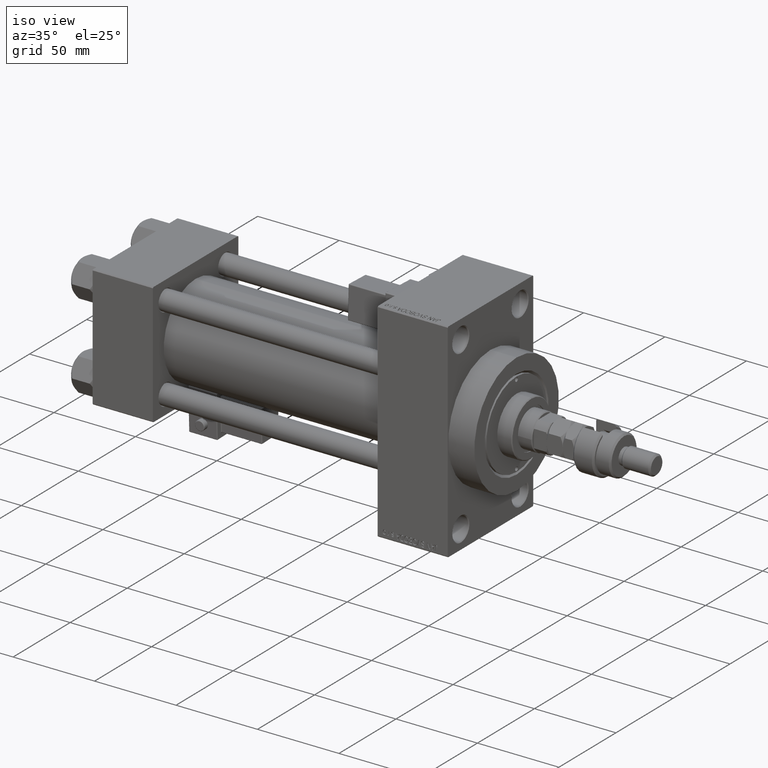
[diagram: clean part render]
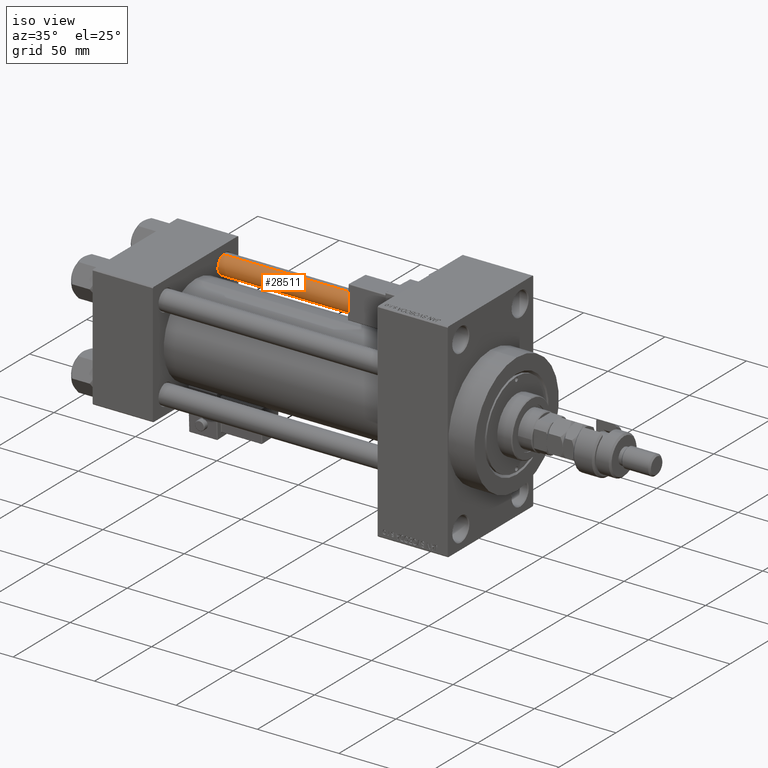
[diagram: same view with one face highlighted and labeled with its STEP entity id]
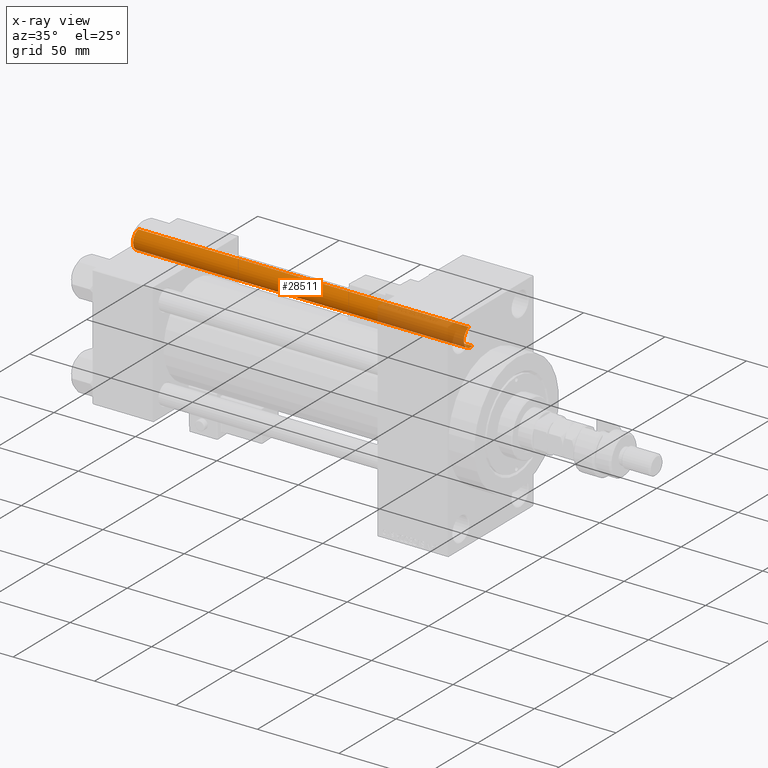
[diagram: x-ray of the same camera — body ghosted, the highlighted face saturated]
A machine part, iso view. The second image highlights one B-rep face of the part: STEP entity #28511.
The next image is the same camera in x-ray: the body ghosted, the highlighted face saturated — about 27% of this face is hidden behind the body in this view.
In plain terms, the highlighted cylindrical surface (edge-blend (fillet) strip) has radius 6 mm, axis along (-1, -0, 0).
Its self-contained STEP definition (entity closure, byte-faithful):
#422 = CARTESIAN_POINT ( 'NONE',  ( 6.000000000000000888, 7.347880794884120722E-16, 203.5000000000000000 ) ) ;
#1394 = DIRECTION ( 'NONE',  ( -0.000000000000000000, -0.000000000000000000, -1.000000000000000000 ) ) ;
#2297 = CARTESIAN_POINT ( 'NONE',  ( 6.000000000000000888, 7.347880794884120722E-16, 204.0000000000000000 ) ) ;
#2555 = CARTESIAN_POINT ( 'NONE',  ( -6.000000000000000888, 0.000000000000000000, 203.5000000000000000 ) ) ;
#4417 = CARTESIAN_POINT ( 'NONE',  ( 6.000000000000000888, 7.347880794884120722E-16, 0.5000000000000281997 ) ) ;
#6589 = EDGE_CURVE ( 'NONE', #46784, #50489, #34399, .T. ) ;
#6662 = VERTEX_POINT ( 'NONE', #32500 ) ;
#9156 = CYLINDRICAL_SURFACE ( 'NONE', #20443, 6.000000000000000888 ) ;
#9413 = DIRECTION ( 'NONE',  ( -1.000000000000000000, 0.000000000000000000, 0.000000000000000000 ) ) ;
#10509 = DIRECTION ( 'NONE',  ( -0.000000000000000000, -0.000000000000000000, -1.000000000000000000 ) ) ;
#11476 = ORIENTED_EDGE ( 'NONE', *, *, #20668, .T. ) ;
#12536 = DIRECTION ( 'NONE',  ( 0.000000000000000000, 0.000000000000000000, -1.000000000000000000 ) ) ;
#17578 = CARTESIAN_POINT ( 'NONE',  ( -6.000000000000000888, 0.000000000000000000, 204.0000000000000000 ) ) ;
#20443 = AXIS2_PLACEMENT_3D ( 'NONE', #42037, #42299, #9413 ) ;
#20668 = EDGE_CURVE ( 'NONE', #46784, #33358, #40592, .T. ) ;
#21299 = AXIS2_PLACEMENT_3D ( 'NONE', #38755, #26021, #41700 ) ;
#24097 = ORIENTED_EDGE ( 'NONE', *, *, #43735, .T. ) ;
#25302 = ORIENTED_EDGE ( 'NONE', *, *, #48829, .T. ) ;
#25781 = LINE ( 'NONE', #17578, #46069 ) ;
#26021 = DIRECTION ( 'NONE',  ( -0.000000000000000000, -0.000000000000000000, 1.000000000000000000 ) ) ;
#28511 = ADVANCED_FACE ( 'NONE', ( #37021 ), #9156, .T. ) ;
#28701 = DIRECTION ( 'NONE',  ( 1.000000000000000000, 0.000000000000000000, 0.000000000000000000 ) ) ;
#32500 = CARTESIAN_POINT ( 'NONE',  ( -6.000000000000000888, 0.000000000000000000, 0.5000000000000281997 ) ) ;
#33358 = VERTEX_POINT ( 'NONE', #2555 ) ;
#34399 = LINE ( 'NONE', #2297, #43105 ) ;
#35234 = EDGE_LOOP ( 'NONE', ( #41488, #11476, #25302, #24097 ) ) ;
#37021 = FACE_OUTER_BOUND ( 'NONE', #35234, .T. ) ;
#38755 = CARTESIAN_POINT ( 'NONE',  ( 0.000000000000000000, 0.000000000000000000, 0.5000000000000281997 ) ) ;
#40592 = CIRCLE ( 'NONE', #47393, 6.000000000000000888 ) ;
#41488 = ORIENTED_EDGE ( 'NONE', *, *, #6589, .F. ) ;
#41700 = DIRECTION ( 'NONE',  ( 1.000000000000000000, 0.000000000000000000, 0.000000000000000000 ) ) ;
#42037 = CARTESIAN_POINT ( 'NONE',  ( 0.000000000000000000, 0.000000000000000000, 204.0000000000000000 ) ) ;
#42299 = DIRECTION ( 'NONE',  ( -0.000000000000000000, -0.000000000000000000, -1.000000000000000000 ) ) ;
#43105 = VECTOR ( 'NONE', #10509, 1000.000000000000000 ) ;
#43735 = EDGE_CURVE ( 'NONE', #6662, #50489, #49254, .T. ) ;
#46069 = VECTOR ( 'NONE', #1394, 1000.000000000000000 ) ;
#46784 = VERTEX_POINT ( 'NONE', #422 ) ;
#47393 = AXIS2_PLACEMENT_3D ( 'NONE', #48887, #12536, #28701 ) ;
#48829 = EDGE_CURVE ( 'NONE', #33358, #6662, #25781, .T. ) ;
#48887 = CARTESIAN_POINT ( 'NONE',  ( 0.000000000000000000, 0.000000000000000000, 203.5000000000000000 ) ) ;
#49254 = CIRCLE ( 'NONE', #21299, 6.000000000000000888 ) ;
#50489 = VERTEX_POINT ( 'NONE', #4417 ) ;